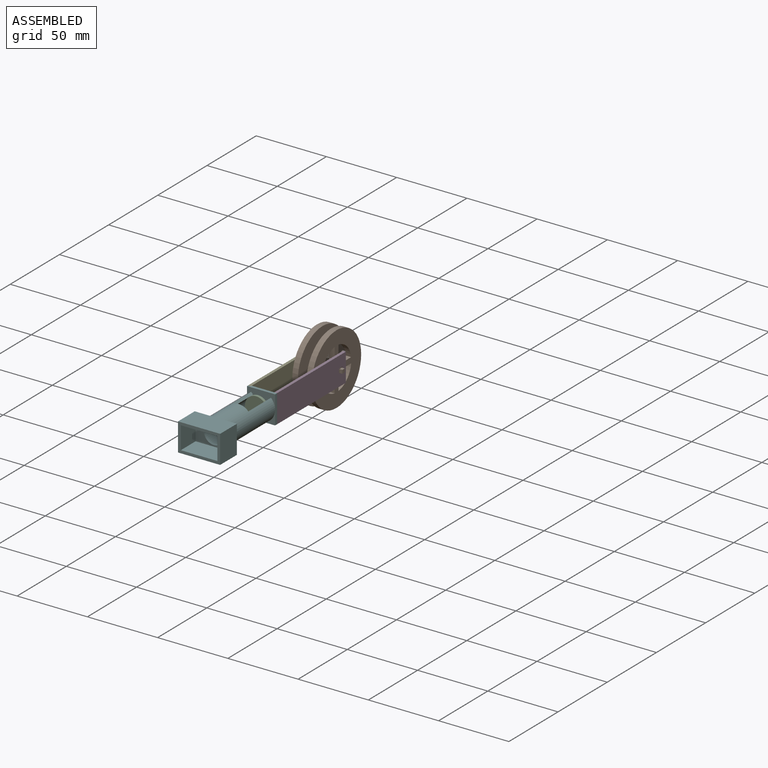
[diagram: assembled view]
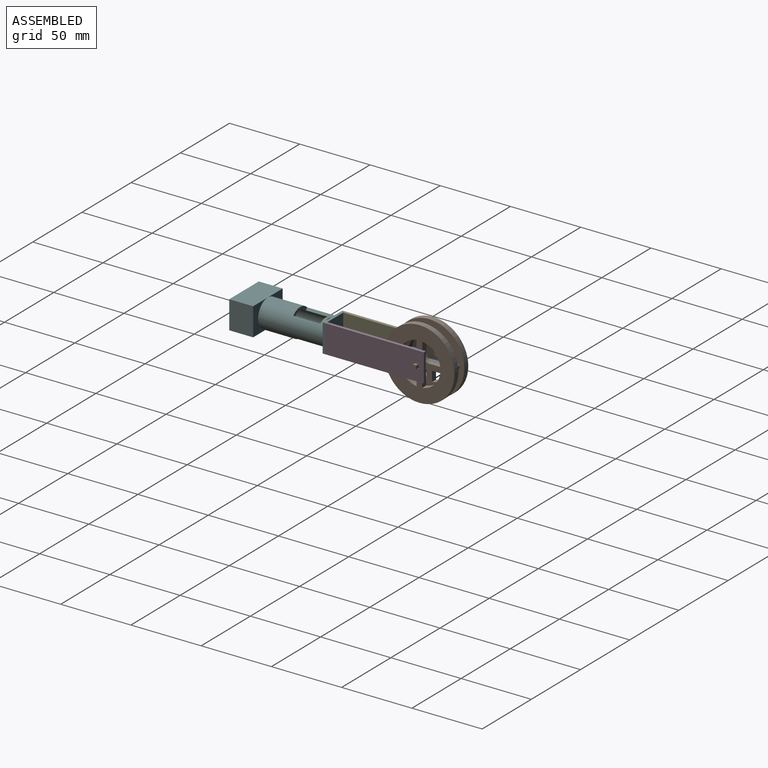
[diagram: assembled view, second angle]
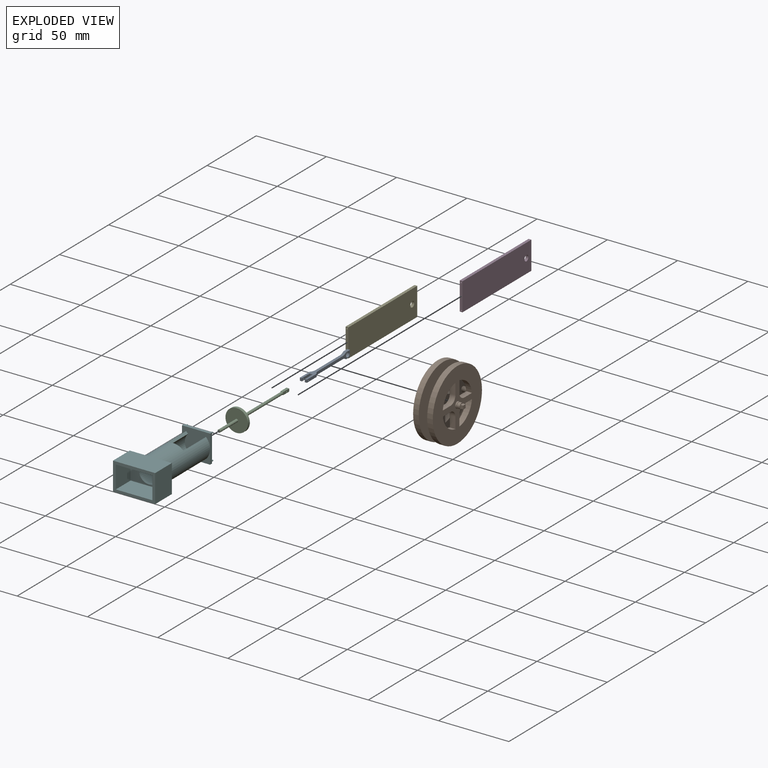
[diagram: exploded view]
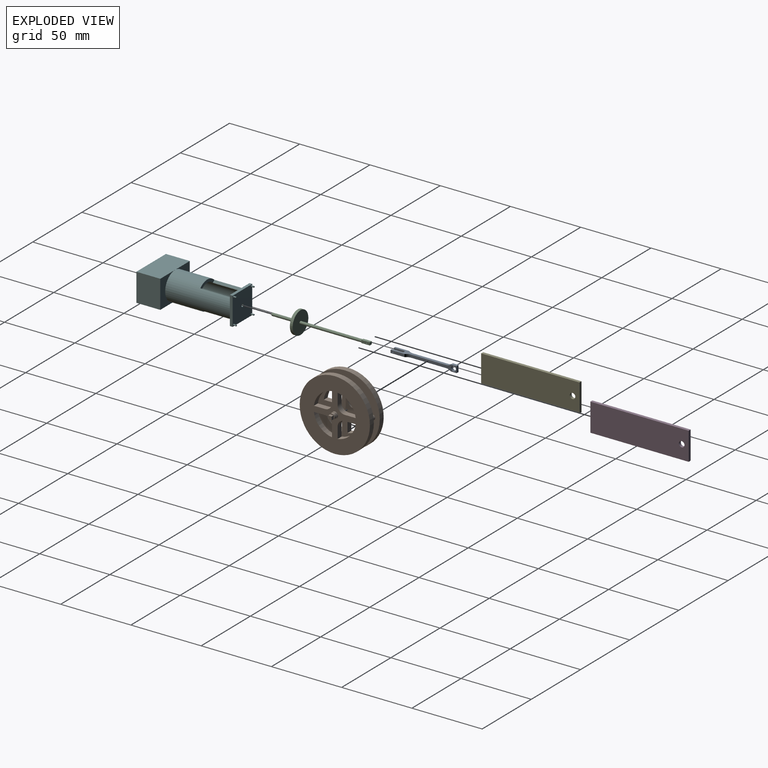
[diagram: exploded view, second angle]
ASSEMBLY  parts=6 mates=5
PART A: 21 faces, bbox 5x46x4.5 mm
  f0: plane 2.02x2mm, normal (0,-1,0), area 4mm2, adj f2,f4,f7,f11
  f1: plane 32.43x4.5mm, normal (-1,0,0), area 67.7mm2, adj f2,f4,f5,f15,f16,f17,f18,f19
  f2: plane 38.69x5mm, normal (0,0,1), area 94.6mm2, adj f0,f1,f3,f6,f7,f8,f10,f11
  f3: plane 32.43x4.5mm, normal (1,0,0), area 67.7mm2, adj f2,f4,f5,f14,f16,f17,f18,f19
  f4: plane 38.69x5mm, normal (0,0,-1), area 94.6mm2, adj f0,f1,f3,f6,f7,f8,f10,f11
  f5: plane 4.5x2mm, normal (0,1,0), area 9mm2, adj f1,f3,f16,f17
  f6: plane 10x2mm, normal (1,0,0), area 19.2mm2, adj f2,f4,f8,f9,f14
  f7: plane 8x2mm, normal (-1,0,0), area 15.2mm2, adj f0,f2,f4,f8,f9
  f8: plane 2x1.49mm, normal (0,-1,0), area 3mm2, adj f2,f4,f6,f7
  f9: cylinder r=0.5mm len=1.49mm, axis (1,0,0), area 4.7mm2, adj f6,f7
  f10: plane 10x2mm, normal (-1,0,0), area 19.2mm2, adj f2,f4,f12,f13,f15
  f11: plane 8x2mm, normal (1,0,0), area 15.2mm2, adj f0,f2,f4,f12,f13
  f12: plane 2x1.49mm, normal (0,-1,0), area 3mm2, adj f2,f4,f10,f11
  f13: cylinder r=0.5mm len=1.49mm, axis (-1,0,0), area 4.7mm2, adj f10,f11
  f14: cylinder r=5mm len=3.57mm, axis (0,0,-1), area 8mm2, adj f2,f3,f4,f6
  f15: cylinder r=5mm len=3.57mm, axis (0,0,1), area 8mm2, adj f1,f2,f4,f10
  f16: plane 4x2mm, normal (0,0,-1), area 8mm2, adj f1,f3,f5,f19
  f17: plane 4x2mm, normal (0,0,1), area 8mm2, adj f1,f3,f5,f18
  f18: cylinder r=5mm len=3.31mm, axis (-1,0,0), area 7.2mm2, adj f1,f2,f3,f17
  f19: cylinder r=5mm len=3.31mm, axis (-1,0,0), area 7.2mm2, adj f1,f3,f4,f16
  f20: cylinder r=1.76mm len=3.52mm, axis (1,0,0), area 22.1mm2, adj f1,f3
PART B: 57 faces, bbox 24x50x50 mm
  f0: plane 3.98x3.98mm, normal (-1,0,0), area 6.2mm2, adj f44,f45,f46,f47,f48
  f1: plane 7.87x4mm, normal (0,1,0), area 31.5mm2, adj f2,f13,f18,f19
  f2: cylinder r=15mm len=12.87mm, axis (-1,0,0), area 78.2mm2, adj f1,f3,f18,f19
  f3: plane 7.87x4mm, normal (0,0,1), area 31.5mm2, adj f2,f13,f18,f19
  f4: cylinder r=15mm len=12.87mm, axis (-1,0,0), area 78.2mm2, adj f5,f14,f18,f19
  f5: plane 7.87x4mm, normal (0,-1,0), area 31.5mm2, adj f4,f6,f18,f19
  f6: cylinder r=5mm len=5mm, axis (-1,0,0), area 31.4mm2, adj f5,f14,f18,f19
  f7: cylinder r=15mm len=12.87mm, axis (-1,0,0), area 78.2mm2, adj f8,f15,f18,f19
  f8: plane 7.87x4mm, normal (0,0,-1), area 31.5mm2, adj f7,f9,f18,f19
  f9: cylinder r=5mm len=5mm, axis (-1,0,0), area 31.4mm2, adj f8,f15,f18,f19
  f10: cylinder r=15mm len=12.87mm, axis (-1,0,0), area 78.2mm2, adj f11,f16,f18,f19
  f11: plane 7.87x4mm, normal (0,1,0), area 31.5mm2, adj f10,f12,f18,f19
  f12: cylinder r=5mm len=5mm, axis (-1,0,0), area 31.4mm2, adj f11,f16,f18,f19
  f13: cylinder r=5mm len=5mm, axis (-1,0,0), area 31.4mm2, adj f1,f3,f18,f19
  f14: plane 7.87x4mm, normal (0,0,1), area 31.5mm2, adj f4,f6,f18,f19
  f15: plane 7.87x4mm, normal (0,-1,0), area 31.5mm2, adj f7,f9,f18,f19
  f16: plane 7.87x4mm, normal (0,0,-1), area 31.5mm2, adj f10,f12,f18,f19
  f17: cylinder r=25mm len=50mm, axis (-1,0,0), area 628.3mm2, adj f18,f19
  f18: plane 50x50mm, normal (1,0,0), area 1485.5mm2, adj f1,f2,f3,f4,f5,f6,f7,f8
  f19: plane 50x50mm, normal (-1,0,0), area 1491.8mm2, adj f1,f2,f3,f4,f5,f6,f7,f8
  f20: plane 7.87x4mm, normal (0,1,0), area 31.5mm2, adj f21,f32,f37,f38
  f21: cylinder r=15mm len=12.87mm, axis (1,0,0), area 78.2mm2, adj f20,f22,f37,f38
  f22: plane 7.87x4mm, normal (0,0,1), area 31.5mm2, adj f21,f32,f37,f38
  f23: cylinder r=15mm len=12.87mm, axis (1,0,0), area 78.2mm2, adj f24,f33,f37,f38
  f24: plane 7.87x4mm, normal (0,-1,0), area 31.5mm2, adj f23,f25,f37,f38
  f25: cylinder r=5mm len=5mm, axis (1,0,0), area 31.4mm2, adj f24,f33,f37,f38
  f26: cylinder r=15mm len=12.87mm, axis (1,0,0), area 78.2mm2, adj f27,f34,f37,f38
  f27: plane 7.87x4mm, normal (0,0,-1), area 31.5mm2, adj f26,f28,f37,f38
  f28: cylinder r=5mm len=5mm, axis (1,0,0), area 31.4mm2, adj f27,f34,f37,f38
  f29: cylinder r=15mm len=12.87mm, axis (1,0,0), area 78.2mm2, adj f30,f35,f37,f38
  f30: plane 7.87x4mm, normal (0,1,0), area 31.5mm2, adj f29,f31,f37,f38
  f31: cylinder r=5mm len=5mm, axis (1,0,0), area 31.4mm2, adj f30,f35,f37,f38
  f32: cylinder r=5mm len=5mm, axis (1,0,0), area 31.4mm2, adj f20,f22,f37,f38
  f33: plane 7.87x4mm, normal (0,0,1), area 31.5mm2, adj f23,f25,f37,f38
  f34: plane 7.87x4mm, normal (0,-1,0), area 31.5mm2, adj f26,f28,f37,f38
  f35: plane 7.87x4mm, normal (0,0,-1), area 31.5mm2, adj f29,f31,f37,f38
  f36: cylinder r=25mm len=50mm, axis (1,0,0), area 628.3mm2, adj f37,f38
  f37: plane 50x50mm, normal (-1,0,0), area 1485.5mm2, adj f20,f21,f22,f23,f24,f25,f26,f27
  f38: plane 50x50mm, normal (1,0,0), area 1491.8mm2, adj f20,f21,f22,f23,f24,f25,f26,f27
  f39: cylinder r=1.75mm len=6mm, axis (1,0,0), area 66mm2, adj f19,f38
  f40: cylinder r=2.25mm len=4.5mm, axis (-1,0,0), area 14.1mm2, adj f18,f41
  f41: plane 4.5x4.5mm, normal (1,0,0), area 3.5mm2, adj f40,f51
  f42: cylinder r=2.25mm len=4.5mm, axis (1,0,0), area 14.1mm2, adj f37,f43
  f43: plane 4.5x4.5mm, normal (-1,0,0), area 3.5mm2, adj f42,f44
  f44: cylinder r=1.99mm len=3.98mm, axis (1,0,0), area 25mm2, adj f0,f43
  f45: plane 2.5x2mm, normal (0,0,-1), area 5mm2, adj f0,f46,f48,f49
  f46: plane 2.5x2mm, normal (0,-1,0), area 5mm2, adj f0,f45,f47,f49
  f47: plane 2.5x2mm, normal (0,0,1), area 5mm2, adj f0,f46,f48,f49
  f48: plane 2.5x2mm, normal (0,1,0), area 5mm2, adj f0,f45,f47,f49
  f49: plane 2.5x2.5mm, normal (-1,0,0), area 6.3mm2, adj f45,f46,f47,f48
  f50: plane 3.98x3.98mm, normal (1,0,0), area 6.2mm2, adj f51,f52,f53,f54,f55
  f51: cylinder r=1.99mm len=3.98mm, axis (-1,0,0), area 25mm2, adj f41,f50
  f52: plane 2.5x2mm, normal (0,0,-1), area 5mm2, adj f50,f53,f55,f56
  f53: plane 2.5x2mm, normal (0,-1,0), area 5mm2, adj f50,f52,f54,f56
  f54: plane 2.5x2mm, normal (0,0,1), area 5mm2, adj f50,f53,f55,f56
  f55: plane 2.5x2mm, normal (0,1,0), area 5mm2, adj f50,f52,f54,f56
  f56: plane 2.5x2.5mm, normal (1,0,0), area 6.2mm2, adj f52,f53,f54,f55
PART C: 16 faces, bbox 16x70x16 mm
  f0: cylinder r=7.99mm len=15.98mm, axis (0,1,0), area 100.4mm2, adj f1,f2
  f1: plane 15.98x15.98mm, normal (0,-1,0), area 197.4mm2, adj f0,f14
  f2: plane 15.98x15.98mm, normal (0,1,0), area 197.5mm2, adj f0,f3
  f3: cylinder r=0.99mm len=44mm, axis (0,-1,0), area 273.7mm2, adj f2,f4,f5,f6,f7
  f4: plane 1x1mm, normal (0,-1,0), area 0.2mm2, adj f3,f8,f11
  f5: plane 1x1mm, normal (0,-1,0), area 0.2mm2, adj f3,f10,f11
  f6: plane 1x1mm, normal (0,-1,0), area 0.2mm2, adj f3,f9,f10
  f7: plane 1x1mm, normal (0,-1,0), area 0.2mm2, adj f3,f8,f9
  f8: plane 6x2mm, normal (-1,0,0), area 11.2mm2, adj f4,f7,f9,f11,f12,f13
  f9: plane 6x2mm, normal (0,0,1), area 12mm2, adj f6,f7,f8,f10,f12
  f10: plane 6x2mm, normal (1,0,0), area 11.2mm2, adj f5,f6,f9,f11,f12,f13
  f11: plane 6x2mm, normal (0,0,-1), area 12mm2, adj f4,f5,f8,f10,f12
  f12: plane 2x2mm, normal (0,1,0), area 4mm2, adj f8,f9,f10,f11
  f13: cylinder r=0.5mm len=2mm, axis (1,0,0), area 6.3mm2, adj f8,f10
  f14: cylinder r=1mm len=18mm, axis (0,1,0), area 113.1mm2, adj f1,f15
  f15: plane 2x2mm, normal (0,-1,0), area 3.1mm2, adj f14
PART D: 11 faces, bbox 2x70x20 mm
  f0: plane 70x20mm, normal (-1,0,0), area 1387.4mm2, adj f1,f3,f4,f5,f6
  f1: plane 70x2mm, normal (0,0,1), area 140mm2, adj f0,f2,f4,f5
  f2: plane 70x20mm, normal (1,0,0), area 1387.4mm2, adj f1,f3,f4,f5,f6
  f3: plane 70x2mm, normal (0,0,-1), area 140mm2, adj f0,f2,f4,f5
  f4: plane 20x2mm, normal (0,1,0), area 40mm2, adj f0,f1,f2,f3
  f5: plane 20x2mm, normal (0,-1,0), area 38.4mm2, adj f0,f1,f2,f3,f7,f9
  f6: cylinder r=2mm len=4mm, axis (1,0,0), area 25.1mm2, adj f0,f2
  f7: cylinder r=0.51mm len=2mm, axis (0,-1,0), area 6.3mm2, adj f5,f8
  f8: plane 1.01x1.01mm, normal (0,-1,0), area 0.8mm2, adj f7
  f9: cylinder r=0.51mm len=2mm, axis (0,-1,0), area 6.3mm2, adj f5,f10
  f10: plane 1.01x1.01mm, normal (0,-1,0), area 0.8mm2, adj f9
PART E: 11 faces, bbox 2x70x20 mm
  f0: plane 70x20mm, normal (1,0,0), area 1387.4mm2, adj f1,f3,f4,f5,f6
  f1: plane 70x2mm, normal (0,0,1), area 140mm2, adj f0,f2,f4,f5
  f2: plane 70x20mm, normal (-1,0,0), area 1387.4mm2, adj f1,f3,f4,f5,f6
  f3: plane 70x2mm, normal (0,0,-1), area 140mm2, adj f0,f2,f4,f5
  f4: plane 20x2mm, normal (0,1,0), area 40mm2, adj f0,f1,f2,f3
  f5: plane 20x2mm, normal (0,-1,0), area 38.4mm2, adj f0,f1,f2,f3,f7,f9
  f6: cylinder r=2mm len=4mm, axis (-1,0,0), area 25.1mm2, adj f0,f2
  f7: cylinder r=0.51mm len=2mm, axis (0,-1,0), area 6.3mm2, adj f5,f8
  f8: plane 1.01x1.01mm, normal (0,-1,0), area 0.8mm2, adj f7
  f9: cylinder r=0.51mm len=2mm, axis (0,-1,0), area 6.3mm2, adj f5,f10
  f10: plane 1.01x1.01mm, normal (0,-1,0), area 0.8mm2, adj f9
PART F: 37 faces, bbox 30x67x20 mm
  f0: cylinder r=8mm len=46mm, axis (0,1,0), area 1734.2mm2, adj f2,f3,f4,f5,f8,f20,f21,f24
  f1: cylinder r=10mm len=46mm, axis (0,1,0), area 2167.7mm2, adj f2,f3,f4,f5,f9,f14,f20,f21
  f2: plane 23x1.41mm, normal (-0.71,0,0.71), area 46mm2, adj f0,f1,f20,f24
  f3: plane 23x1.41mm, normal (0.71,0,0.71), area 46mm2, adj f0,f1,f20,f24
  f4: plane 23x1.41mm, normal (-0.71,0,-0.71), area 46mm2, adj f0,f1,f21,f24
  f5: plane 23x1.41mm, normal (0.71,0,-0.71), area 46mm2, adj f0,f1,f21,f24
  f6: plane 26x16mm, normal (0,-1,0), area 262.1mm2, adj f7,f15,f16,f17,f18
  f7: cylinder r=7mm len=14mm, axis (0,-1,0), area 88mm2, adj f6,f8
  f8: plane 16x16mm, normal (0,1,0), area 47.1mm2, adj f0,f7
  f9: plane 20x15mm, normal (0,1,0), area 142.9mm2, adj f1,f10,f11,f13
  f10: plane 30x17mm, normal (0,0,1), area 510mm2, adj f9,f12,f13,f14,f19
  f11: plane 30x17mm, normal (0,0,-1), area 510mm2, adj f9,f12,f13,f14,f19
  f12: plane 20x17mm, normal (-1,0,0), area 340mm2, adj f10,f11,f14,f19
  f13: plane 20x17mm, normal (1,0,0), area 340mm2, adj f9,f10,f11,f19
  f14: plane 20x15mm, normal (0,1,0), area 142.9mm2, adj f1,f10,f11,f12
  f15: plane 16x15mm, normal (1,0,0), area 240mm2, adj f6,f16,f18,f19
  f16: plane 26x15mm, normal (0,0,-1), area 390mm2, adj f6,f15,f17,f19
  f17: plane 16x15mm, normal (-1,0,0), area 240mm2, adj f6,f16,f18,f19
  f18: plane 26x15mm, normal (0,0,1), area 390mm2, adj f6,f15,f17,f19
  f19: plane 30x20mm, normal (0,-1,0), area 184mm2, adj f10,f11,f12,f13,f15,f16,f17,f18
  f20: plane 14.14x4.34mm, normal (0,1,0), area 28.3mm2, adj f0,f1,f2,f3
  f21: plane 14.14x4.34mm, normal (0,1,0), area 28.3mm2, adj f0,f1,f4,f5
  f22: plane 20x2mm, normal (1,0,0), area 40mm2, adj f24,f25,f26,f28
  f23: plane 20x2mm, normal (-1,0,0), area 40mm2, adj f24,f25,f26,f28
  f24: plane 20x20mm, normal (0,-1,0), area 340.3mm2, adj f0,f1,f2,f3,f4,f5,f22,f23
  f25: plane 20x2mm, normal (0,0,-1), area 40mm2, adj f22,f23,f24,f28
  f26: plane 20x2mm, normal (0,0,1), area 40mm2, adj f22,f23,f24,f28
  f27: cylinder r=1mm len=2mm, axis (0,1,0), area 12.6mm2, adj f24,f28
  f28: plane 20x20mm, normal (0,1,0), area 393.7mm2, adj f22,f23,f25,f26,f27,f29,f31,f34
  f29: cylinder r=0.5mm len=2mm, axis (0,-1,0), area 6.3mm2, adj f28,f30
  f30: plane 1x1mm, normal (0,1,0), area 0.8mm2, adj f29
  f31: cylinder r=0.5mm len=2mm, axis (0,-1,0), area 6.3mm2, adj f28,f32
  f32: plane 1x1mm, normal (0,1,0), area 0.8mm2, adj f31
  f33: plane 1x1mm, normal (0,1,0), area 0.8mm2, adj f34
  f34: cylinder r=0.5mm len=2mm, axis (0,-1,0), area 6.3mm2, adj f28,f33
  f35: cylinder r=0.5mm len=2mm, axis (0,-1,0), area 6.3mm2, adj f28,f36
  f36: plane 1x1mm, normal (0,1,0), area 0.8mm2, adj f35
PLACE A t=(-0.22,45.29,-2.45)mm
PLACE B rot(axis=(-1,0,0),180deg) t=(-0.22,115.03,-2.45)mm
PLACE C t=(-0.23,45.29,-2.45)mm
PLACE D t=(-0.23,50.29,-2.45)mm
PLACE E t=(-0.23,49.29,-2.45)mm
PLACE F t=(-0.23,50.29,-2.45)mm
MATE fastened E.f9 <-> F.f34  axis (0,-1,0) through (-9.23,51.29,6.55)mm
MATE slider C.f3 <-> F.f27  axis (0,-1,0) through (-0.23,45.29,-2.45)mm
MATE revolute A.f20 <-> B.f39  axis (1,0,0) through (-0.22,135.03,-2.45)mm
MATE revolute C.f13 <-> A.f9  axis (1,0,0) through (-0.23,92.79,-2.45)mm
MATE fastened D.f9 <-> F.f31  axis (0,-1,0) through (8.77,52.29,6.55)mm
